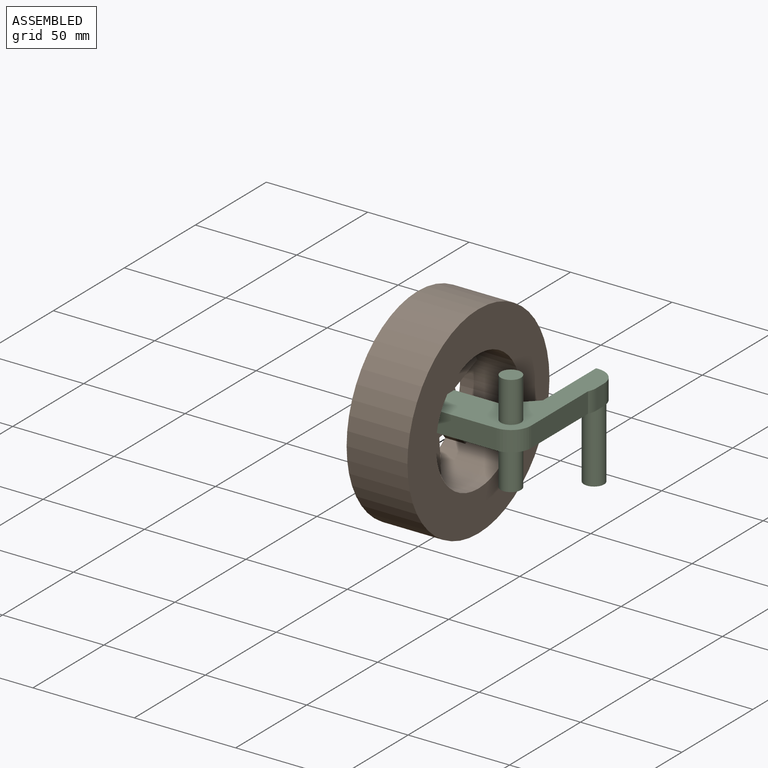
[diagram: assembled view]
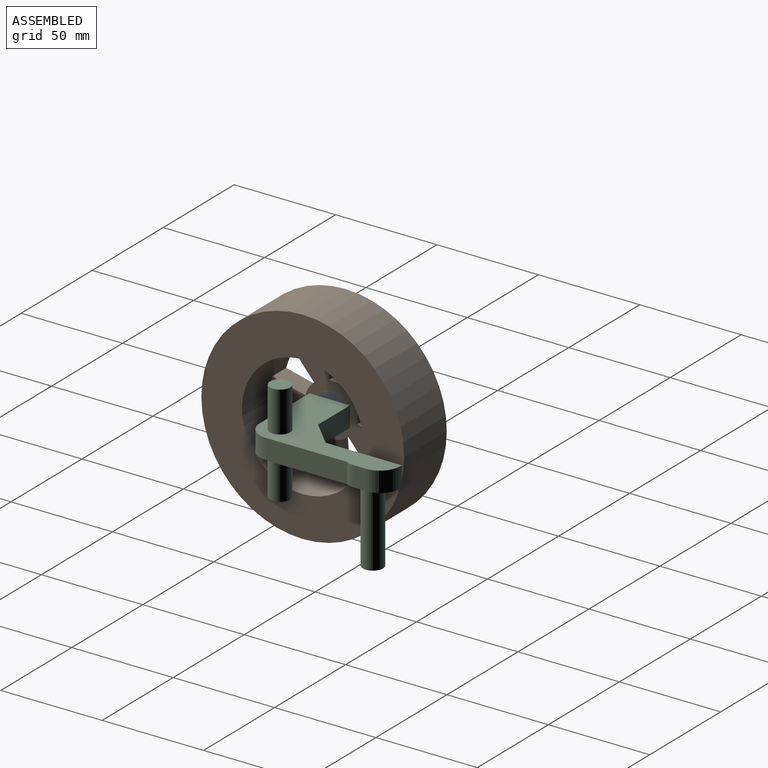
[diagram: assembled view, second angle]
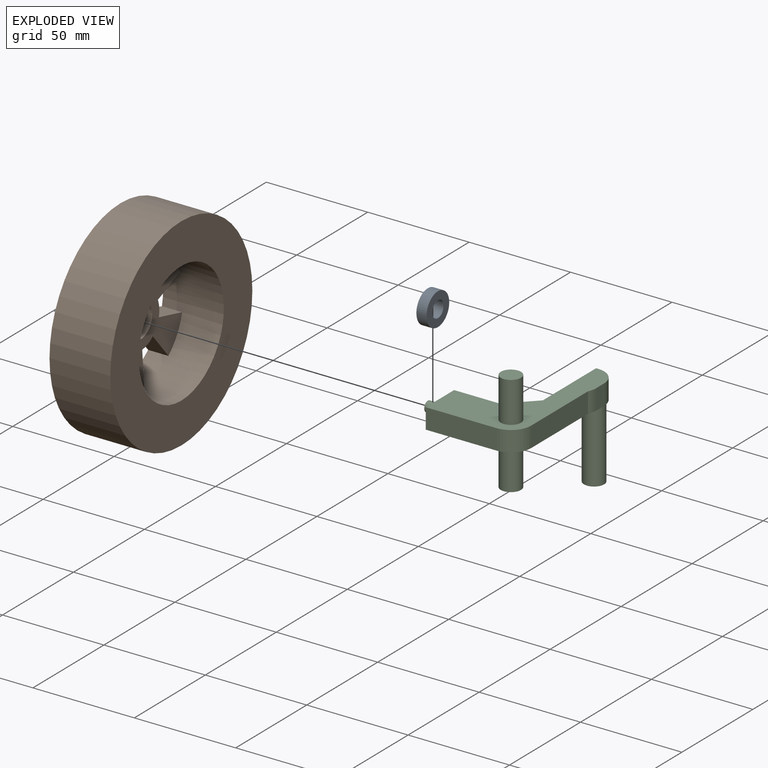
[diagram: exploded view]
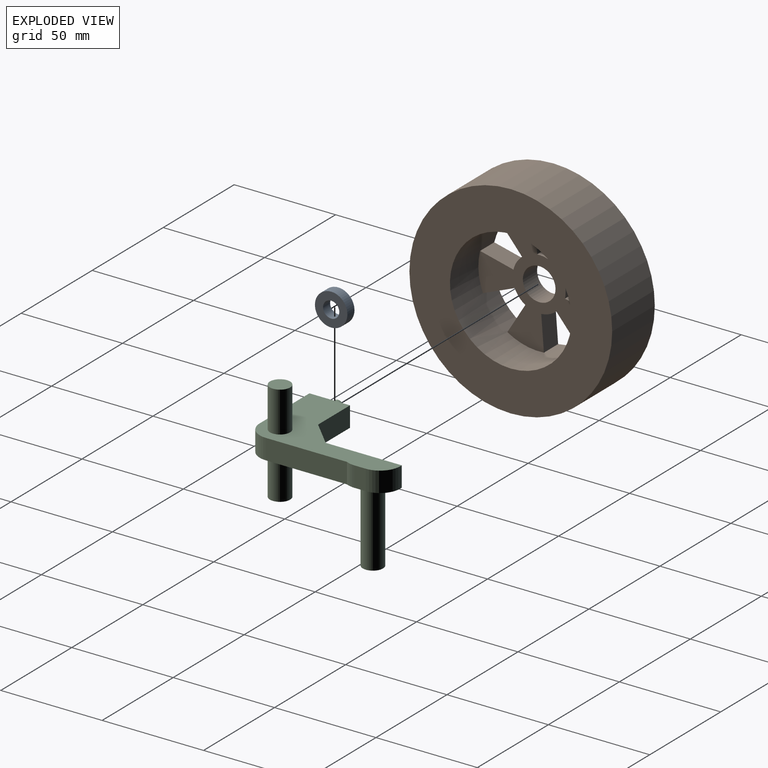
[diagram: exploded view, second angle]
ASSEMBLY  parts=3 mates=2
PART A: 4 faces, bbox 16x16x5 mm
  f0: cylinder r=4mm len=8mm, axis (0,0,-1), area 125.7mm2, adj f2,f3
  f1: cylinder r=8mm len=16mm, axis (0,0,-1), area 251.3mm2, adj f2,f3
  f2: plane 16x16mm, normal (0,0,1), area 150.8mm2, adj f0,f1
  f3: plane 16x16mm, normal (0,0,-1), area 150.8mm2, adj f0,f1
PART B: 21 faces, bbox 100x30x100 mm
  f0: cylinder r=30mm len=60mm, axis (0,1,0), area 4712.4mm2, adj f2,f3,f4,f6,f7,f9,f10,f12
  f1: cylinder r=50mm len=100mm, axis (0,1,0), area 9424.8mm2, adj f2,f3
  f2: plane 100x100mm, normal (0,-1,0), area 5026.5mm2, adj f0,f1
  f3: plane 100x100mm, normal (0,1,0), area 6504.2mm2, adj f0,f1,f4,f5,f6,f7,f8,f9
  f4: plane 16.12x10mm, normal (-0.31,0,-0.95), area 169.5mm2, adj f0,f3,f5,f20
  f5: cylinder r=13.05mm len=10mm, axis (0,1,0), area 82mm2, adj f3,f4,f6,f20
  f6: plane 16.12x10mm, normal (-0.31,0,0.95), area 169.5mm2, adj f0,f3,f5,f20
  f7: plane 13.71x10mm, normal (0.81,0,-0.59), area 169.5mm2, adj f0,f3,f8,f20
  f8: cylinder r=13.05mm len=10mm, axis (0,1,0), area 82mm2, adj f3,f7,f9,f20
  f9: plane 16.95x10mm, normal (-1,0,0), area 169.5mm2, adj f0,f3,f8,f20
  f10: plane 13.71x10mm, normal (0.81,0,0.59), area 169.5mm2, adj f0,f3,f11,f20
  f11: cylinder r=13.05mm len=10mm, axis (0,1,0), area 82mm2, adj f3,f10,f12,f20
  f12: plane 16.12x10mm, normal (-0.31,0,-0.95), area 169.5mm2, adj f0,f3,f11,f20
  f13: plane 16.12x10mm, normal (-0.31,0,0.95), area 169.5mm2, adj f0,f3,f14,f20
  f14: cylinder r=13.05mm len=10mm, axis (0,1,0), area 82mm2, adj f3,f13,f15,f20
  f15: plane 13.71x10mm, normal (0.81,0,-0.59), area 169.5mm2, adj f0,f3,f14,f20
  f16: plane 16.95x10mm, normal (-1,0,0), area 169.5mm2, adj f0,f3,f17,f20
  f17: cylinder r=13.05mm len=10mm, axis (0,1,0), area 82mm2, adj f3,f16,f18,f20
  f18: plane 13.71x10mm, normal (0.81,0,0.59), area 169.5mm2, adj f0,f3,f17,f20
  f19: cylinder r=8.05mm len=16.1mm, axis (0,1,0), area 505.8mm2, adj f3,f20
  f20: plane 60x58.53mm, normal (0,-1,0), area 1477.6mm2, adj f0,f4,f5,f6,f7,f8,f9,f10
PART C: 24 faces, bbox 52x70x65 mm
  f0: plane 70x46mm, normal (0,0,-1), area 1296.7mm2, adj f1,f3,f4,f5,f12,f14,f15,f16
  f1: plane 40x10mm, normal (1,0,0), area 400mm2, adj f0,f2,f18,f21
  f2: plane 70x46mm, normal (0,0,1), area 1375.2mm2, adj f1,f3,f4,f5,f11,f14,f15,f16
  f3: plane 20x10mm, normal (-1,0,0), area 161.5mm2, adj f0,f2,f4,f5,f10
  f4: plane 35x10mm, normal (0,-1,0), area 350mm2, adj f0,f2,f3,f18
  f5: plane 22.5x10mm, normal (0,1,0), area 225mm2, adj f0,f2,f3,f17
  f6: cylinder r=1.5mm len=6mm, axis (1,0,0), area 56.5mm2, adj f8,f9
  f7: cylinder r=2.5mm len=5mm, axis (1,0,0), area 78.5mm2, adj f8,f10
  f8: plane 5x5mm, normal (-1,0,0), area 12.6mm2, adj f6,f7
  f9: plane 3x3mm, normal (-1,0,0), area 7.1mm2, adj f6
  f10: cone r=2.5mm half-angle=45deg, axis (1,0,0), area 26.7mm2, adj f3,f7
  f11: cylinder r=5mm len=20mm, axis (0,0,-1), area 628.3mm2, adj f2,f23
  f12: cylinder r=5mm len=20mm, axis (0,0,-1), area 628.3mm2, adj f0,f13
  f13: plane 10x10mm, normal (0,0,-1), area 78.5mm2, adj f12
  f14: plane 37.5x10mm, normal (-1,0,0), area 375mm2, adj f0,f2,f15,f17
  f15: plane 10x1mm, normal (0,1,0), area 10mm2, adj f0,f2,f14,f22
  f16: plane 10x5.64mm, normal (1,0,0), area 56.4mm2, adj f0,f2,f21,f22
  f17: plane 12.5x12.5mm, normal (-0.71,0.71,0), area 176.8mm2, adj f0,f2,f5,f14
  f18: cylinder r=10mm len=10mm, axis (0,0,-1), area 157.1mm2, adj f0,f1,f2,f4
  f19: cylinder r=5mm len=35mm, axis (0,0,1), area 1099.6mm2, adj f0,f20
  f20: plane 10x10mm, normal (0,0,-1), area 78.5mm2, adj f19
  f21: cylinder r=10mm len=10mm, axis (0,0,-1), area 45.1mm2, adj f0,f1,f2,f16
  f22: cylinder r=10mm len=10mm, axis (0,0,-1), area 157.1mm2, adj f0,f2,f15,f16
  f23: plane 10x10mm, normal (0,0,1), area 78.5mm2, adj f11
PLACE A rot(axis=(0,-1,0),90deg) t=(45.72,19.91,28.33)mm
PLACE B rot(axis=(0.64,-0.64,0.43),133.7deg) t=(35.72,19.91,28.33)mm
PLACE C t=(124.71,29.91,46.72)mm
MATE revolute B.f0 <-> A.f0  axis (1,0,0) through (45.72,19.91,28.33)mm
MATE revolute A.f0 <-> C.f10  axis (1,0,0) through (45.72,19.91,28.33)mm
